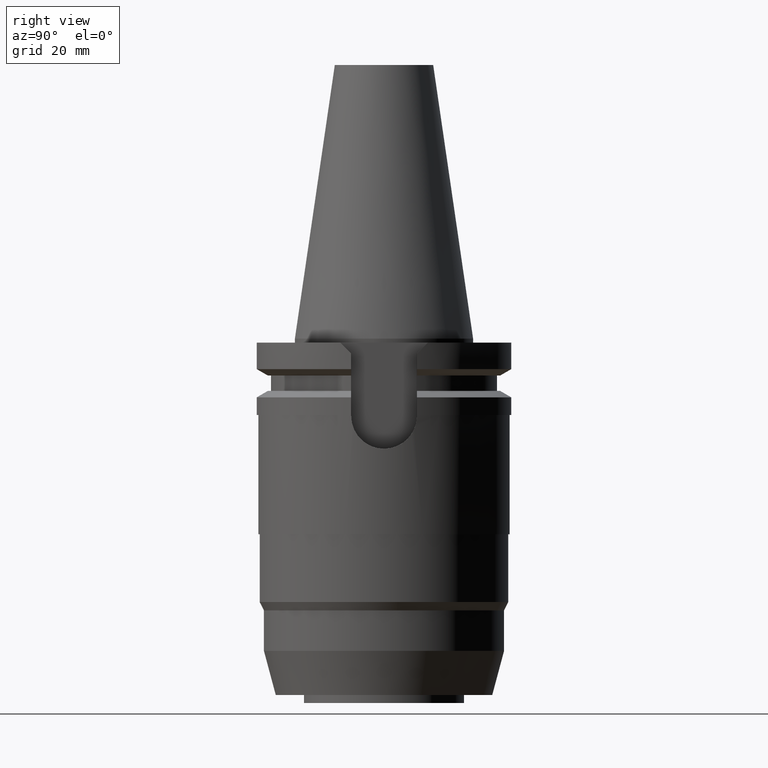
[diagram: clean part render]
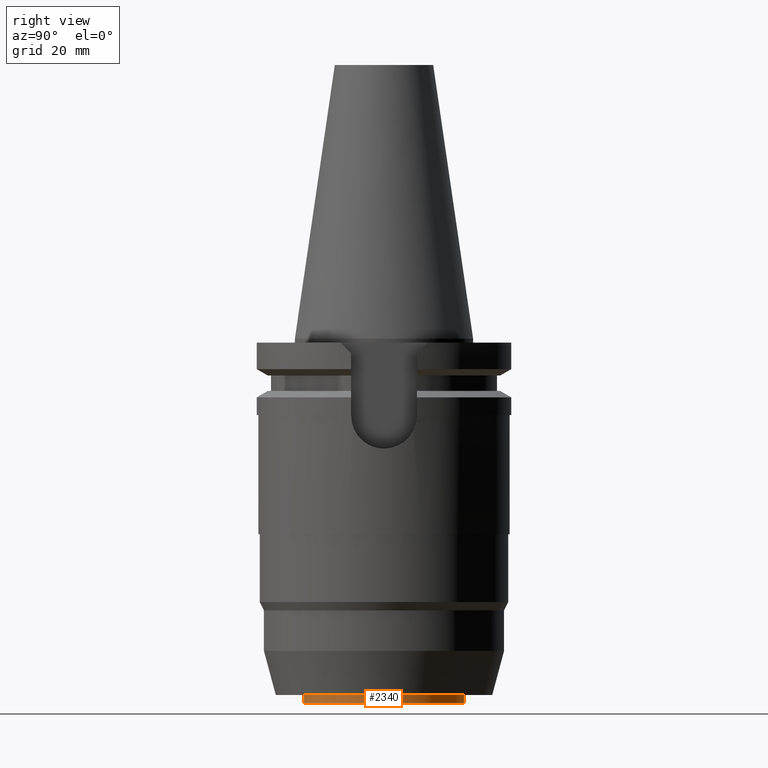
[diagram: same view with one face highlighted and labeled with its STEP entity id]
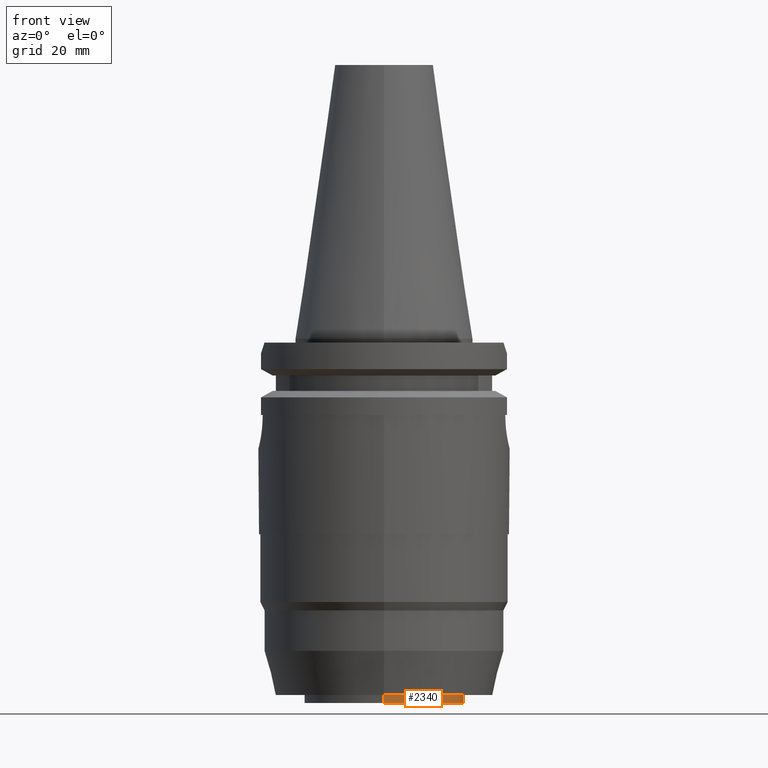
[diagram: same view with one face highlighted and labeled with its STEP entity id]
A machine part, right view. The second image highlights one B-rep face of the part: STEP entity #2340.
A second angle (front view) of the same face is appended — the face is thin or edge-on in the first view.
In plain terms, the highlighted cylindrical surface (partial cylindrical patch) has radius 19.95 mm, axis along (0, 0, 1).
Its self-contained STEP definition (entity closure, byte-faithful):
#958=CARTESIAN_POINT('',(0.E0,0.E0,-8.89E1));
#959=DIRECTION('',(0.E0,0.E0,-1.E0));
#960=DIRECTION('',(0.E0,1.E0,0.E0));
#961=AXIS2_PLACEMENT_3D('',#958,#959,#960);
#966=DIRECTION('',(0.E0,0.E0,-1.E0));
#967=VECTOR('',#966,2.E0);
#968=CARTESIAN_POINT('',(0.E0,-1.995E1,-8.89E1));
#969=LINE('',#968,#967);
#973=DIRECTION('',(0.E0,0.E0,-1.E0));
#974=VECTOR('',#973,2.E0);
#975=CARTESIAN_POINT('',(0.E0,1.995E1,-8.89E1));
#976=LINE('',#975,#974);
#980=CARTESIAN_POINT('',(0.E0,0.E0,-9.09E1));
#981=DIRECTION('',(0.E0,0.E0,1.E0));
#982=DIRECTION('',(0.E0,-1.E0,0.E0));
#983=AXIS2_PLACEMENT_3D('',#980,#981,#982);
#1567=CARTESIAN_POINT('',(0.E0,-1.995E1,-8.89E1));
#1568=CARTESIAN_POINT('',(0.E0,1.995E1,-8.89E1));
#1569=VERTEX_POINT('',#1567);
#1570=VERTEX_POINT('',#1568);
#1571=CARTESIAN_POINT('',(0.E0,1.995E1,-9.09E1));
#1572=VERTEX_POINT('',#1571);
#1573=CARTESIAN_POINT('',(0.E0,-1.995E1,-9.09E1));
#1574=VERTEX_POINT('',#1573);
#2328=CARTESIAN_POINT('',(0.E0,0.E0,-9.88575E1));
#2329=DIRECTION('',(0.E0,0.E0,1.E0));
#2330=DIRECTION('',(0.E0,1.E0,0.E0));
#2331=AXIS2_PLACEMENT_3D('',#2328,#2329,#2330);
#2332=CYLINDRICAL_SURFACE('',#2331,1.995E1);
#2333=ORIENTED_EDGE('',*,*,#2318,.T.);
#2335=ORIENTED_EDGE('',*,*,#2334,.F.);
#2336=ORIENTED_EDGE('',*,*,#2321,.F.);
#2337=ORIENTED_EDGE('',*,*,#2308,.F.);
#2338=EDGE_LOOP('',(#2333,#2335,#2336,#2337));
#2339=FACE_OUTER_BOUND('',#2338,.F.);
#962=CIRCLE('',#961,1.995E1);
#984=CIRCLE('',#983,1.995E1);
#2308=EDGE_CURVE('',#1570,#1569,#962,.T.);
#2318=EDGE_CURVE('',#1570,#1572,#976,.T.);
#2321=EDGE_CURVE('',#1569,#1574,#969,.T.);
#2334=EDGE_CURVE('',#1574,#1572,#984,.T.);
#2340=ADVANCED_FACE('',(#2339),#2332,.T.);